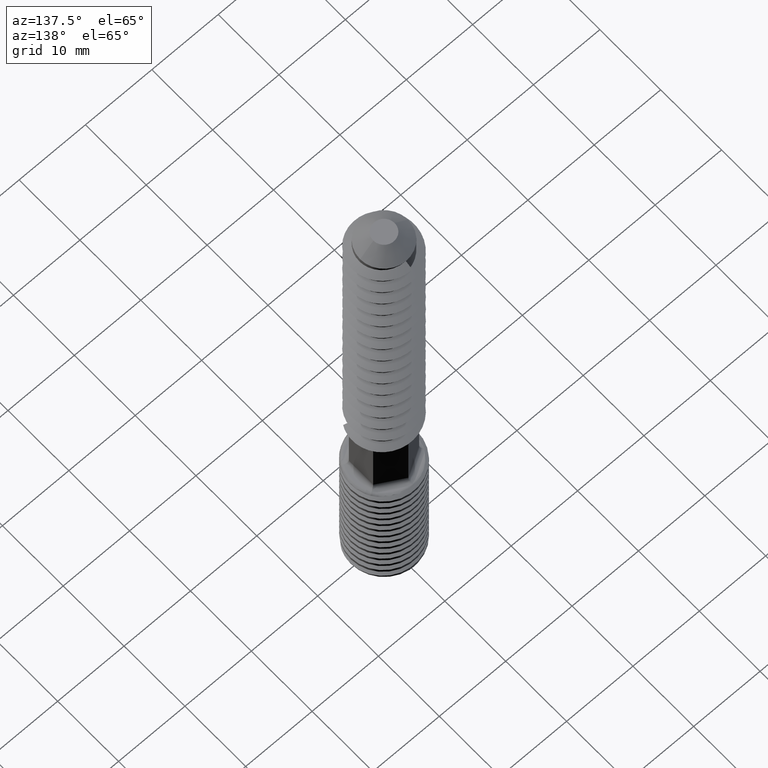
[diagram: clean part render]
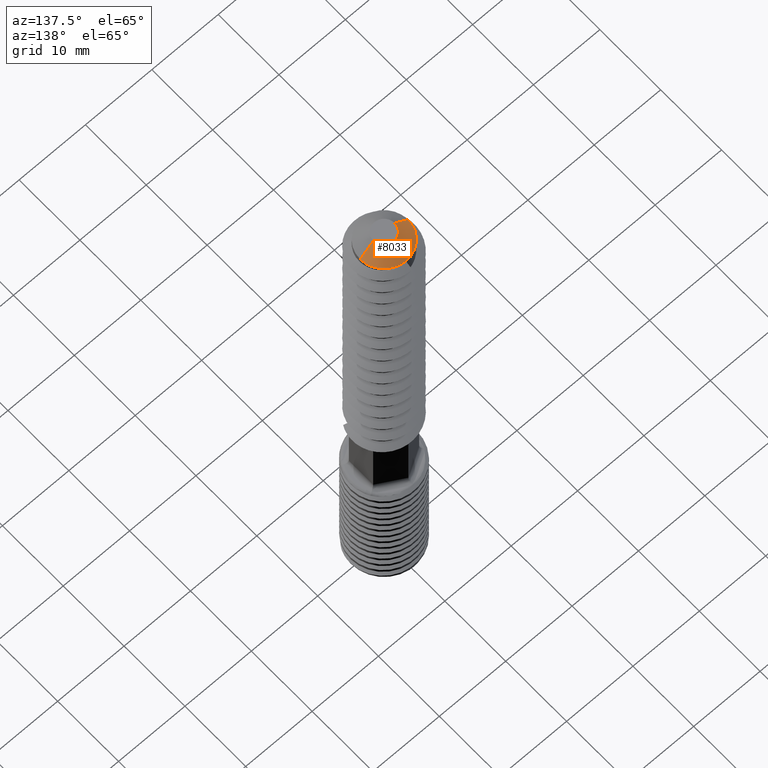
[diagram: same view with one face highlighted and labeled with its STEP entity id]
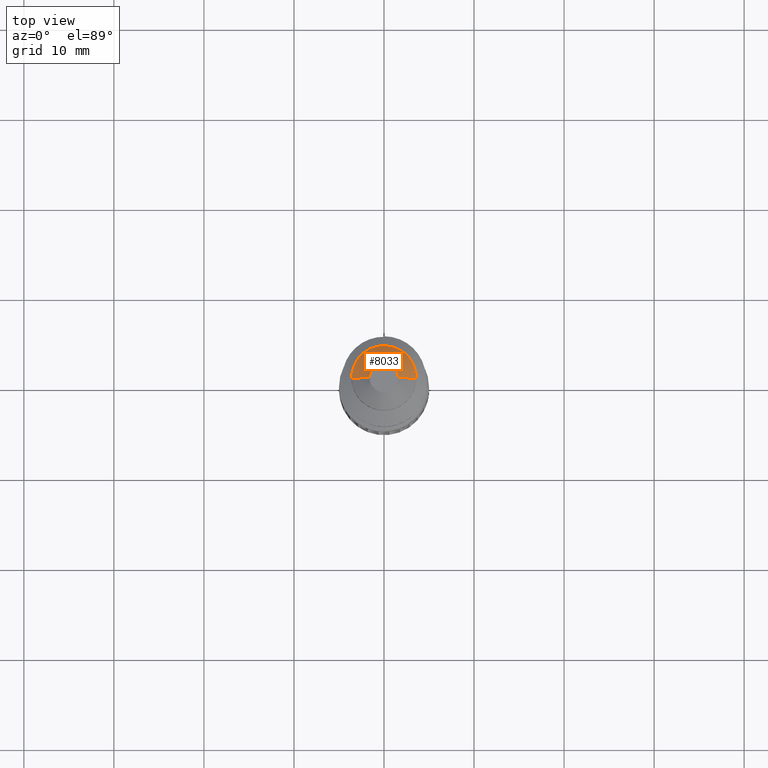
[diagram: same view with one face highlighted and labeled with its STEP entity id]
A machine part, auxiliary view. The second image highlights one B-rep face of the part: STEP entity #8033.
A second angle (top view) of the same face is appended — the face is thin or edge-on in the first view.
In plain terms, the highlighted conical surface has half-angle 45 deg.
Its self-contained STEP definition (entity closure, byte-faithful):
#280 = ORIENTED_EDGE ( 'NONE', *, *, #10143, .F. ) ;
#650 = EDGE_CURVE ( 'NONE', #6680, #13542, #4547, .T. ) ;
#1567 = DIRECTION ( 'NONE',  ( 0.0000000000000000000, 0.0000000000000000000, -1.000000000000000000 ) ) ;
#2081 = EDGE_CURVE ( 'NONE', #2485, #3014, #2345, .T. ) ;
#2345 = CIRCLE ( 'NONE', #4316, 3.600000000000000100 ) ;
#2485 = VERTEX_POINT ( 'NONE', #12286 ) ;
#2670 = CARTESIAN_POINT ( 'NONE',  ( 1.599999999999996800, 1.959434878635761000E-016, 11.50000000000000000 ) ) ;
#3014 = VERTEX_POINT ( 'NONE', #15287 ) ;
#3057 = AXIS2_PLACEMENT_3D ( 'NONE', #4688, #12342, #10797 ) ;
#3283 = DIRECTION ( 'NONE',  ( 0.0000000000000000000, 0.0000000000000000000, -1.000000000000000000 ) ) ;
#3872 = LINE ( 'NONE', #2670, #11637 ) ;
#4316 = AXIS2_PLACEMENT_3D ( 'NONE', #10891, #1567, #12438 ) ;
#4547 = CIRCLE ( 'NONE', #15169, 1.599999999999996800 ) ;
#4606 = CIRCLE ( 'NONE', #12944, 3.600000000000000100 ) ;
#4688 = CARTESIAN_POINT ( 'NONE',  ( 0.0000000000000000000, 0.0000000000000000000, 11.50000000000000000 ) ) ;
#6680 = VERTEX_POINT ( 'NONE', #7863 ) ;
#7863 = CARTESIAN_POINT ( 'NONE',  ( 1.599999999999996800, 3.184081677783116200E-016, 11.50000000000000000 ) ) ;
#8033 = ADVANCED_FACE ( 'NONE', ( #17691 ), #17185, .T. ) ;
#8439 = EDGE_CURVE ( 'NONE', #6680, #9496, #3872, .T. ) ;
#8701 = CARTESIAN_POINT ( 'NONE',  ( -1.599999999999996800, 0.0000000000000000000, 11.50000000000000000 ) ) ;
#8866 = DIRECTION ( 'NONE',  ( 0.7071067811865477900, 8.659560562354936600E-017, -0.7071067811865473500 ) ) ;
#9382 = DIRECTION ( 'NONE',  ( 1.000000000000000000, 0.0000000000000000000, 0.0000000000000000000 ) ) ;
#9452 = DIRECTION ( 'NONE',  ( 0.0000000000000000000, 0.0000000000000000000, 1.000000000000000000 ) ) ;
#9496 = VERTEX_POINT ( 'NONE', #10892 ) ;
#9520 = CARTESIAN_POINT ( 'NONE',  ( 0.0000000000000000000, 0.0000000000000000000, 11.50000000000000000 ) ) ;
#10143 = EDGE_CURVE ( 'NONE', #13542, #2485, #19362, .T. ) ;
#10797 = DIRECTION ( 'NONE',  ( -1.000000000000000000, 0.0000000000000000000, 0.0000000000000000000 ) ) ;
#10891 = CARTESIAN_POINT ( 'NONE',  ( 0.0000000000000000000, 0.0000000000000000000, 9.499999999999998200 ) ) ;
#10892 = CARTESIAN_POINT ( 'NONE',  ( 3.600000000000000100, 4.408728476930471200E-016, 9.499999999999998200 ) ) ;
#11637 = VECTOR ( 'NONE', #8866, 1000.000000000000000 ) ;
#12286 = CARTESIAN_POINT ( 'NONE',  ( -3.600000000000000100, 0.0000000000000000000, 9.499999999999998200 ) ) ;
#12342 = DIRECTION ( 'NONE',  ( 0.0000000000000000000, 0.0000000000000000000, -1.000000000000000000 ) ) ;
#12438 = DIRECTION ( 'NONE',  ( 1.000000000000000000, -8.881784197001252300E-016, 0.0000000000000000000 ) ) ;
#12573 = CARTESIAN_POINT ( 'NONE',  ( 0.0000000000000000000, 0.0000000000000000000, 9.499999999999998200 ) ) ;
#12944 = AXIS2_PLACEMENT_3D ( 'NONE', #12573, #3283, #14128 ) ;
#13542 = VERTEX_POINT ( 'NONE', #18324 ) ;
#14128 = DIRECTION ( 'NONE',  ( 1.000000000000000000, 1.776356839400250500E-015, 0.0000000000000000000 ) ) ;
#14384 = ORIENTED_EDGE ( 'NONE', *, *, #16881, .F. ) ;
#14750 = VECTOR ( 'NONE', #19591, 1000.000000000000000 ) ;
#15169 = AXIS2_PLACEMENT_3D ( 'NONE', #9520, #9452, #9382 ) ;
#15287 = CARTESIAN_POINT ( 'NONE',  ( -1.387530377361254400E-014, 3.599999999999999200, 9.499999999999998200 ) ) ;
#15318 = ORIENTED_EDGE ( 'NONE', *, *, #2081, .F. ) ;
#15519 = ORIENTED_EDGE ( 'NONE', *, *, #650, .F. ) ;
#15841 = EDGE_LOOP ( 'NONE', ( #15519, #17708, #14384, #15318, #280 ) ) ;
#16881 = EDGE_CURVE ( 'NONE', #3014, #9496, #4606, .T. ) ;
#17185 = CONICAL_SURFACE ( 'NONE', #3057, 1.599999999999996800, 0.7853981633974485000 ) ;
#17691 = FACE_OUTER_BOUND ( 'NONE', #15841, .T. ) ;
#17708 = ORIENTED_EDGE ( 'NONE', *, *, #8439, .T. ) ;
#18324 = CARTESIAN_POINT ( 'NONE',  ( -1.599999999999996800, 0.0000000000000000000, 11.50000000000000000 ) ) ;
#19362 = LINE ( 'NONE', #8701, #14750 ) ;
#19591 = DIRECTION ( 'NONE',  ( -0.7071067811865477900, 0.0000000000000000000, -0.7071067811865473500 ) ) ;